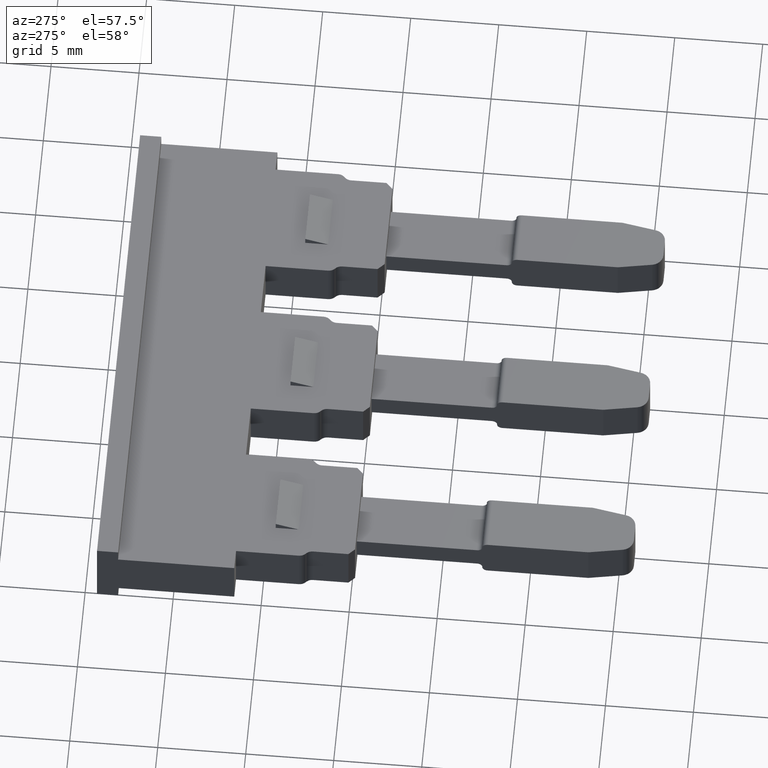
[diagram: clean part render]
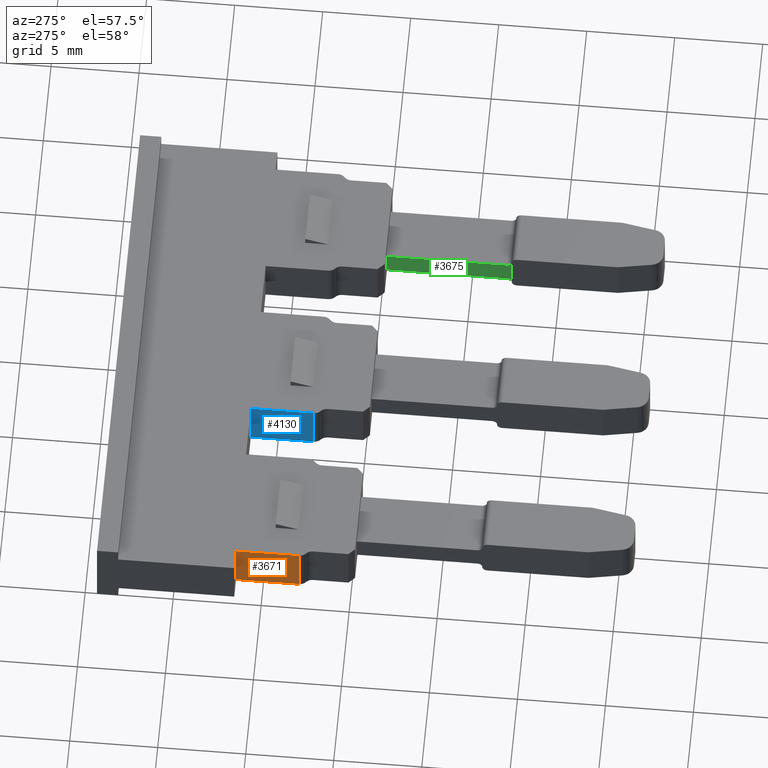
[diagram: same view with three faces highlighted in distinct colors, each labeled with its STEP entity id]
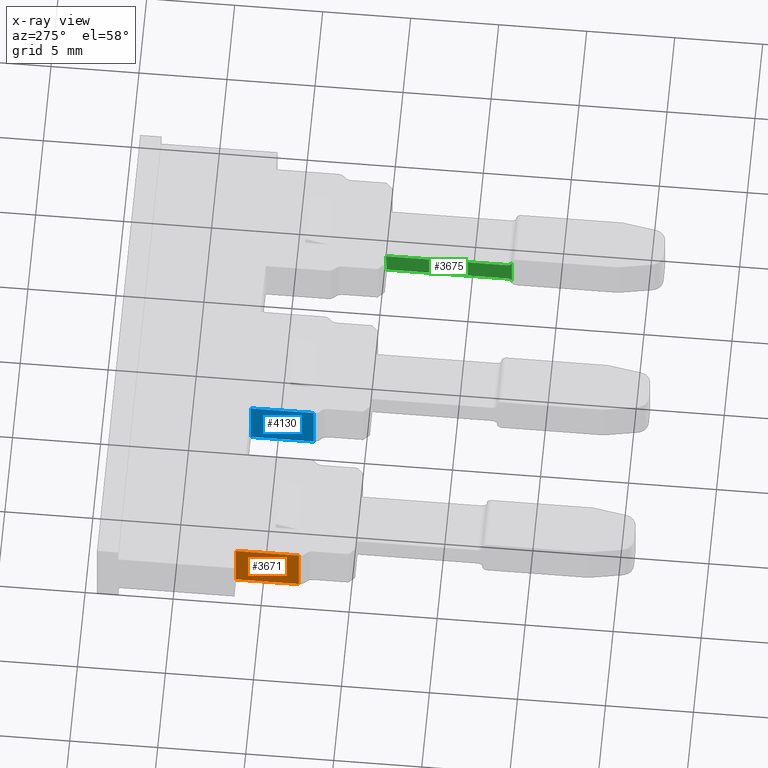
[diagram: x-ray of the same camera — body ghosted, the three highlighted faces saturated]
A machine part, auxiliary view with three faces highlighted in distinct colors.
The next image is the same camera in x-ray (body ghosted, the three faces saturated) — at least one of them is partly hidden behind the body in this view.
Their STEP definitions:

[orange] entity #3671 — the highlighted planar face has unit normal (1, -0, 0).
#156 = ORIENTED_EDGE ( 'NONE', *, *, #3766, .F. ) ;
#158 = ORIENTED_EDGE ( 'NONE', *, *, #3792, .T. ) ;
#166 = ORIENTED_EDGE ( 'NONE', *, *, #3901, .F. ) ;
#180 = ORIENTED_EDGE ( 'NONE', *, *, #3846, .F. ) ;
#298 = CARTESIAN_POINT ( 'NONE',  ( 1130.744467917465300, 666.4912584401425900, 0.0000000000000000000 ) ) ;
#310 = CARTESIAN_POINT ( 'NONE',  ( 1130.744467917441200, 662.9178632849957500, 0.0000000000000000000 ) ) ;
#325 = CARTESIAN_POINT ( 'NONE',  ( 1130.744467917465300, 666.4912584401425900, 3.000000000000000000 ) ) ;
#363 = CARTESIAN_POINT ( 'NONE',  ( 1130.744467917441200, 662.9178632849957500, 3.000000000000000000 ) ) ;
#562 = FACE_OUTER_BOUND ( 'NONE', #2525, .T. ) ;
#568 = PLANE ( 'NONE',  #3328 ) ;
#574 = DIRECTION ( 'NONE',  ( 0.0000000000000000000, 0.0000000000000000000, -1.000000000000000000 ) ) ;
#575 = CARTESIAN_POINT ( 'NONE',  ( 1130.744467917465300, 666.6212584401425800, 3.000000000000000000 ) ) ;
#576 = DIRECTION ( 'NONE',  ( 1.000000000000000000, -0.0000000000000000000, 0.0000000000000000000 ) ) ;
#988 = DIRECTION ( 'NONE',  ( 0.0000000000000000000, 1.000000000000000000, 0.0000000000000000000 ) ) ;
#995 = CARTESIAN_POINT ( 'NONE',  ( 1130.744467917465300, 666.6212584401425800, 0.0000000000000000000 ) ) ;
#1000 = LINE ( 'NONE', #995, #3504 ) ;
#1012 = CARTESIAN_POINT ( 'NONE',  ( 1130.744467917465300, 662.1736497164254200, 3.000000000000000000 ) ) ;
#1019 = LINE ( 'NONE', #1012, #3505 ) ;
#1044 = DIRECTION ( 'NONE',  ( 0.0000000000000000000, 1.000000000000000000, 0.0000000000000000000 ) ) ;
#2032 = LINE ( 'NONE', #2044, #3548 ) ;
#2044 = CARTESIAN_POINT ( 'NONE',  ( 1130.744467917465300, 666.4912584401425900, 3.000000000000000000 ) ) ;
#2050 = DIRECTION ( 'NONE',  ( 0.0000000000000000000, 0.0000000000000000000, 1.000000000000000000 ) ) ;
#2167 = LINE ( 'NONE', #2171, #3613 ) ;
#2171 = CARTESIAN_POINT ( 'NONE',  ( 1130.744467917417300, 662.9178632849957500, 3.000000000000000000 ) ) ;
#2182 = DIRECTION ( 'NONE',  ( -0.0000000000000000000, -0.0000000000000000000, -1.000000000000000000 ) ) ;
#2412 = VERTEX_POINT ( 'NONE', #310 ) ;
#2427 = VERTEX_POINT ( 'NONE', #298 ) ;
#2475 = VERTEX_POINT ( 'NONE', #325 ) ;
#2477 = VERTEX_POINT ( 'NONE', #363 ) ;
#2525 = EDGE_LOOP ( 'NONE', ( #166, #158, #180, #156 ) ) ;
#3328 = AXIS2_PLACEMENT_3D ( 'NONE', #575, #576, #574 ) ;
#3504 = VECTOR ( 'NONE', #988, 1000.000000000000000 ) ;
#3505 = VECTOR ( 'NONE', #1044, 1000.000000000000000 ) ;
#3548 = VECTOR ( 'NONE', #2050, 1000.000000000000000 ) ;
#3613 = VECTOR ( 'NONE', #2182, 1000.000000000000000 ) ;
#3671 = ADVANCED_FACE ( 'NONE', ( #562 ), #568, .F. ) ;
#3766 = EDGE_CURVE ( 'NONE', #2412, #2427, #1000, .T. ) ;
#3792 = EDGE_CURVE ( 'NONE', #2477, #2475, #1019, .T. ) ;
#3846 = EDGE_CURVE ( 'NONE', #2427, #2475, #2032, .T. ) ;
#3901 = EDGE_CURVE ( 'NONE', #2477, #2412, #2167, .T. ) ;

[blue] entity #4130 — the highlighted planar face has unit normal (1, -0, 0).
#220 = CARTESIAN_POINT ( 'NONE',  ( 1140.344467917441300, 662.9178632849957500, 3.000000000000000000 ) ) ;
#227 = CARTESIAN_POINT ( 'NONE',  ( 1140.344467917465200, 666.4912584401425900, 0.0000000000000000000 ) ) ;
#233 = CARTESIAN_POINT ( 'NONE',  ( 1140.344467917441300, 662.9178632849957500, 0.0000000000000000000 ) ) ;
#316 = CARTESIAN_POINT ( 'NONE',  ( 1140.344467917465200, 666.4912584401425900, 3.000000000000000000 ) ) ;
#875 = CARTESIAN_POINT ( 'NONE',  ( 1140.344467917465200, 666.6212584401425800, 0.0000000000000000000 ) ) ;
#883 = DIRECTION ( 'NONE',  ( 0.0000000000000000000, 0.0000000000000000000, 1.000000000000000000 ) ) ;
#885 = LINE ( 'NONE', #889, #3422 ) ;
#889 = CARTESIAN_POINT ( 'NONE',  ( 1140.344467917465200, 666.4912584401425900, 3.000000000000000000 ) ) ;
#890 = DIRECTION ( 'NONE',  ( 0.0000000000000000000, 1.000000000000000000, 0.0000000000000000000 ) ) ;
#904 = LINE ( 'NONE', #875, #3389 ) ;
#1256 = LINE ( 'NONE', #1325, #3639 ) ;
#1319 = DIRECTION ( 'NONE',  ( -0.0000000000000000000, -0.0000000000000000000, -1.000000000000000000 ) ) ;
#1325 = CARTESIAN_POINT ( 'NONE',  ( 1140.344467917417200, 662.9178632849957500, 3.000000000000000000 ) ) ;
#1876 = CARTESIAN_POINT ( 'NONE',  ( 1140.344467917465200, 666.6212584401425800, 3.000000000000000000 ) ) ;
#1894 = PLANE ( 'NONE',  #3273 ) ;
#1903 = FACE_OUTER_BOUND ( 'NONE', #2620, .T. ) ;
#1907 = DIRECTION ( 'NONE',  ( 1.000000000000000000, -0.0000000000000000000, 0.0000000000000000000 ) ) ;
#1923 = DIRECTION ( 'NONE',  ( 0.0000000000000000000, 0.0000000000000000000, -1.000000000000000000 ) ) ;
#2160 = LINE ( 'NONE', #2193, #3629 ) ;
#2183 = DIRECTION ( 'NONE',  ( 0.0000000000000000000, 1.000000000000000000, 0.0000000000000000000 ) ) ;
#2193 = CARTESIAN_POINT ( 'NONE',  ( 1140.344467917465200, 662.1736497164254200, 3.000000000000000000 ) ) ;
#2331 = VERTEX_POINT ( 'NONE', #220 ) ;
#2332 = VERTEX_POINT ( 'NONE', #227 ) ;
#2350 = VERTEX_POINT ( 'NONE', #233 ) ;
#2413 = VERTEX_POINT ( 'NONE', #316 ) ;
#2620 = EDGE_LOOP ( 'NONE', ( #2830, #2832, #2836, #2850 ) ) ;
#2830 = ORIENTED_EDGE ( 'NONE', *, *, #3932, .F. ) ;
#2832 = ORIENTED_EDGE ( 'NONE', *, *, #3888, .T. ) ;
#2836 = ORIENTED_EDGE ( 'NONE', *, *, #3745, .F. ) ;
#2850 = ORIENTED_EDGE ( 'NONE', *, *, #3747, .F. ) ;
#3273 = AXIS2_PLACEMENT_3D ( 'NONE', #1876, #1907, #1923 ) ;
#3389 = VECTOR ( 'NONE', #890, 1000.000000000000000 ) ;
#3422 = VECTOR ( 'NONE', #883, 1000.000000000000000 ) ;
#3629 = VECTOR ( 'NONE', #2183, 1000.000000000000000 ) ;
#3639 = VECTOR ( 'NONE', #1319, 1000.000000000000000 ) ;
#3745 = EDGE_CURVE ( 'NONE', #2332, #2413, #885, .T. ) ;
#3747 = EDGE_CURVE ( 'NONE', #2350, #2332, #904, .T. ) ;
#3888 = EDGE_CURVE ( 'NONE', #2331, #2413, #2160, .T. ) ;
#3932 = EDGE_CURVE ( 'NONE', #2331, #2350, #1256, .T. ) ;
#4130 = ADVANCED_FACE ( 'NONE', ( #1903 ), #1894, .F. ) ;

[green] entity #3675 — the highlighted planar face has unit normal (1, 0, 0).
#196 = CARTESIAN_POINT ( 'NONE',  ( 1151.694436423388400, 652.6527719074961200, 0.5000061035155150000 ) ) ;
#197 = CARTESIAN_POINT ( 'NONE',  ( 1151.694438266101500, 659.7892820011524000, 0.8000061035155150400 ) ) ;
#199 = CARTESIAN_POINT ( 'NONE',  ( 1151.694438810618700, 652.9527719074834500, 2.199999999999906000 ) ) ;
#205 = CARTESIAN_POINT ( 'NONE',  ( 1151.694438810618700, 659.7892820011524000, 2.199999999999890000 ) ) ;
#206 = CARTESIAN_POINT ( 'NONE',  ( 1151.694438538360400, 652.9527719074919800, 0.8000061035155150400 ) ) ;
#242 = CARTESIAN_POINT ( 'NONE',  ( 1151.694436423388400, 652.6527719074961200, 2.499999999999889400 ) ) ;
#557 = FACE_OUTER_BOUND ( 'NONE', #2669, .T. ) ;
#558 = PLANE ( 'NONE',  #3353 ) ;
#569 = DIRECTION ( 'NONE',  ( 0.9999999999999966700, 8.155715666119348600E-008, 5.364441115334498000E-014 ) ) ;
#580 = CARTESIAN_POINT ( 'NONE',  ( 1151.694440342223300, 634.1732475399600200, 1.499999999999889900 ) ) ;
#592 = DIRECTION ( 'NONE',  ( -8.155715666119348600E-008, 0.9999999999999966700, 0.0000000000000000000 ) ) ;
#1559 = LINE ( 'NONE', #1567, #3217 ) ;
#1567 = CARTESIAN_POINT ( 'NONE',  ( 1151.694438835085700, 652.6527719075245400, 1.499999999999889900 ) ) ;
#1571 = DIRECTION ( 'NONE',  ( 5.364441115334479700E-014, 4.375085644430830600E-021, -1.000000000000000000 ) ) ;
#1632 = CARTESIAN_POINT ( 'NONE',  ( 1151.694438253052300, 659.7892820011524000, 3.759999999999700900 ) ) ;
#1650 = DIRECTION ( 'NONE',  ( -5.364441115334515700E-014, 0.0000000000000000000, 1.000000000000000000 ) ) ;
#1662 = DIRECTION ( 'NONE',  ( -0.9999999999999967800, -8.155715666119348600E-008, -5.364441115334498000E-014 ) ) ;
#1663 = DIRECTION ( 'NONE',  ( -8.155698338897270800E-008, 0.9999999999999966700, 0.0000000000000000000 ) ) ;
#1664 = LINE ( 'NONE', #1632, #3176 ) ;
#1665 = CARTESIAN_POINT ( 'NONE',  ( 1151.694438810618700, 652.9527719074888000, 2.499999999999889900 ) ) ;
#1672 = DIRECTION ( 'NONE',  ( -8.155698338897270800E-008, 0.9999999999999966700, 1.481742969063681100E-013 ) ) ;
#1688 = DIRECTION ( 'NONE',  ( -0.9999999999999967800, -8.155715666119348600E-008, -5.364441115334498000E-014 ) ) ;
#1694 = CARTESIAN_POINT ( 'NONE',  ( 1151.694438810618700, 652.9527719074888000, 0.5000061035155151100 ) ) ;
#1699 = LINE ( 'NONE', #1729, #3251 ) ;
#1729 = CARTESIAN_POINT ( 'NONE',  ( 1151.694438266101500, 641.5303140484550100, 0.8000061035155150400 ) ) ;
#1736 = DIRECTION ( 'NONE',  ( -5.677532115032497500E-037, -1.000000000000000000, 1.058364141383339600E-023 ) ) ;
#1741 = CARTESIAN_POINT ( 'NONE',  ( 1151.694438810618700, 641.5303140484550100, 2.199999999999890000 ) ) ;
#1743 = DIRECTION ( 'NONE',  ( 5.677532115032497500E-037, 1.000000000000000000, -1.058364141383339600E-023 ) ) ;
#1744 = LINE ( 'NONE', #1741, #3259 ) ;
#2216 = ORIENTED_EDGE ( 'NONE', *, *, #4042, .F. ) ;
#2219 = ORIENTED_EDGE ( 'NONE', *, *, #4046, .F. ) ;
#2231 = ORIENTED_EDGE ( 'NONE', *, *, #4065, .T. ) ;
#2232 = ORIENTED_EDGE ( 'NONE', *, *, #4053, .F. ) ;
#2234 = ORIENTED_EDGE ( 'NONE', *, *, #4010, .F. ) ;
#2237 = ORIENTED_EDGE ( 'NONE', *, *, #4074, .T. ) ;
#2321 = VERTEX_POINT ( 'NONE', #205 ) ;
#2325 = VERTEX_POINT ( 'NONE', #197 ) ;
#2329 = VERTEX_POINT ( 'NONE', #206 ) ;
#2348 = VERTEX_POINT ( 'NONE', #242 ) ;
#2349 = VERTEX_POINT ( 'NONE', #196 ) ;
#2361 = VERTEX_POINT ( 'NONE', #199 ) ;
#2669 = EDGE_LOOP ( 'NONE', ( #2237, #2216, #2231, #2232, #2234, #2219 ) ) ;
#3176 = VECTOR ( 'NONE', #1650, 1000.000000000000000 ) ;
#3184 = AXIS2_PLACEMENT_3D ( 'NONE', #1665, #1662, #1663 ) ;
#3193 = CIRCLE ( 'NONE', #3184, 0.2999999999999679600 ) ;
#3217 = VECTOR ( 'NONE', #1571, 1000.000000000000000 ) ;
#3251 = VECTOR ( 'NONE', #1736, 1000.000000000000000 ) ;
#3259 = VECTOR ( 'NONE', #1743, 1000.000000000000000 ) ;
#3269 = AXIS2_PLACEMENT_3D ( 'NONE', #1694, #1688, #1672 ) ;
#3289 = CIRCLE ( 'NONE', #3269, 0.2999999999999679600 ) ;
#3353 = AXIS2_PLACEMENT_3D ( 'NONE', #580, #569, #592 ) ;
#3675 = ADVANCED_FACE ( 'NONE', ( #557 ), #558, .F. ) ;
#4010 = EDGE_CURVE ( 'NONE', #2348, #2349, #1559, .T. ) ;
#4042 = EDGE_CURVE ( 'NONE', #2325, #2321, #1664, .T. ) ;
#4046 = EDGE_CURVE ( 'NONE', #2361, #2348, #3193, .T. ) ;
#4053 = EDGE_CURVE ( 'NONE', #2349, #2329, #3289, .T. ) ;
#4065 = EDGE_CURVE ( 'NONE', #2325, #2329, #1699, .T. ) ;
#4074 = EDGE_CURVE ( 'NONE', #2361, #2321, #1744, .T. ) ;